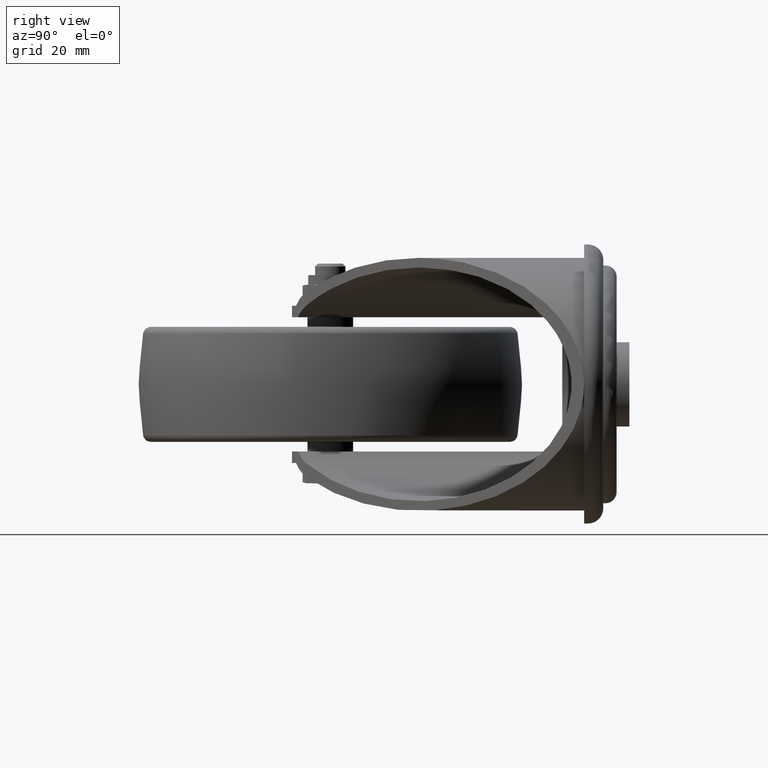
[diagram: clean part render]
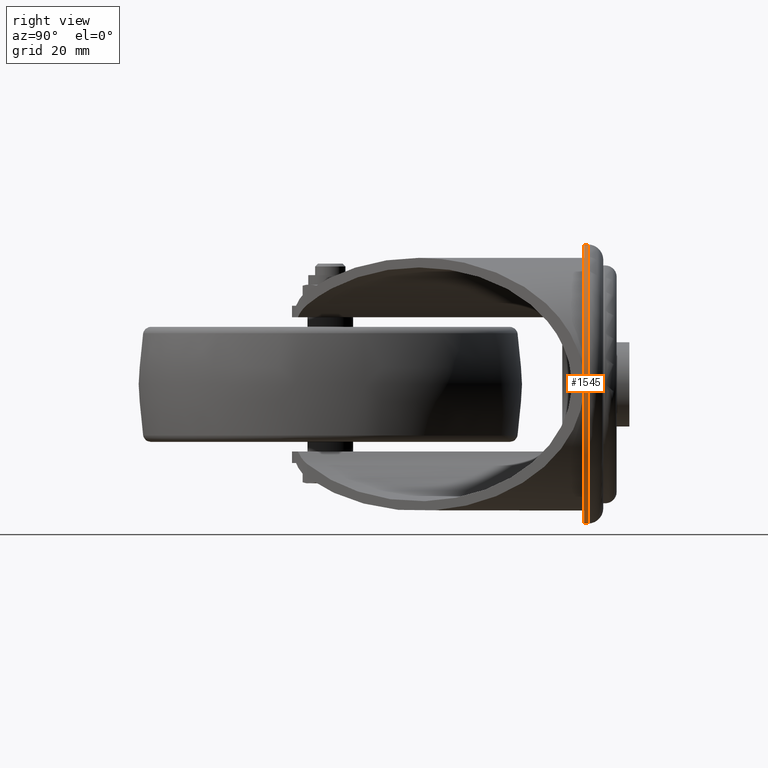
[diagram: same view with one face highlighted and labeled with its STEP entity id]
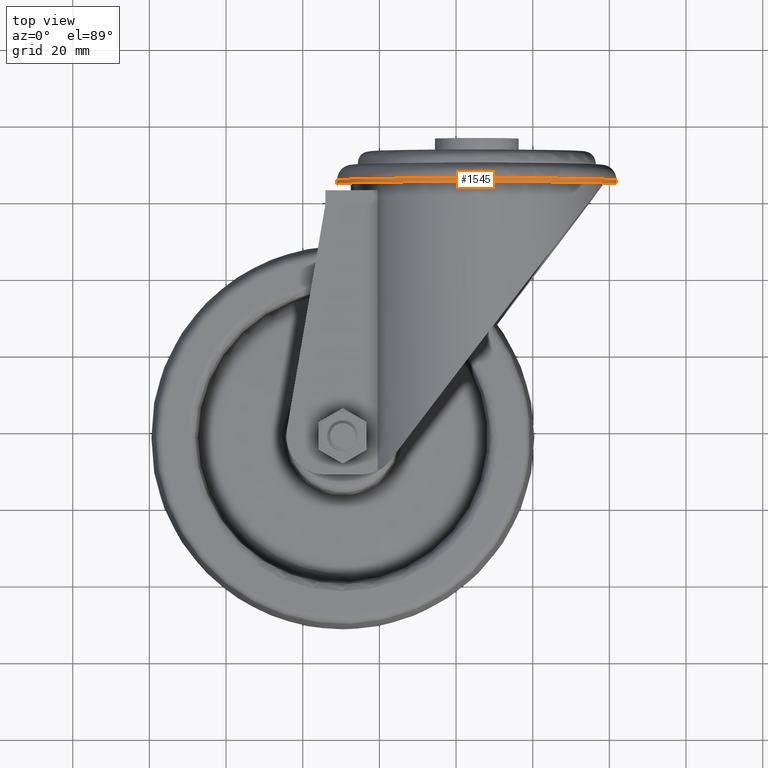
[diagram: same view with one face highlighted and labeled with its STEP entity id]
A machine part, right view. The second image highlights one B-rep face of the part: STEP entity #1545.
A second angle (top view) of the same face is appended — the face is thin or edge-on in the first view.
In plain terms, the highlighted cylindrical surface (bore or boss wall) has radius 36.5 mm, axis along (0, -1, 0).
Its self-contained STEP definition (entity closure, byte-faithful):
#234=FACE_OUTER_BOUND('',#343,.T.);
#343=EDGE_LOOP('',(#1136,#1137,#1138,#1139));
#468=CIRCLE('',#1788,36.5);
#470=CIRCLE('',#1791,36.5);
#587=LINE('',#2626,#651);
#651=VECTOR('',#2095,36.5);
#728=VERTEX_POINT('',#2620);
#729=VERTEX_POINT('',#2624);
#884=EDGE_CURVE('',#728,#728,#468,.T.);
#886=EDGE_CURVE('',#729,#729,#470,.T.);
#887=EDGE_CURVE('',#729,#728,#587,.T.);
#1136=ORIENTED_EDGE('',*,*,#886,.F.);
#1137=ORIENTED_EDGE('',*,*,#887,.T.);
#1138=ORIENTED_EDGE('',*,*,#884,.T.);
#1139=ORIENTED_EDGE('',*,*,#887,.F.);
#1515=CYLINDRICAL_SURFACE('',#1790,36.5);
#1545=ADVANCED_FACE('',(#234),#1515,.T.);
#1788=AXIS2_PLACEMENT_3D('',#2621,#2087,#2088);
#1790=AXIS2_PLACEMENT_3D('',#2623,#2091,#2092);
#1791=AXIS2_PLACEMENT_3D('',#2625,#2093,#2094);
#2087=DIRECTION('center_axis',(0.,-1.,0.));
#2088=DIRECTION('ref_axis',(0.,0.,-1.));
#2091=DIRECTION('center_axis',(0.,-1.,0.));
#2092=DIRECTION('ref_axis',(0.,0.,-1.));
#2093=DIRECTION('center_axis',(0.,-1.,0.));
#2094=DIRECTION('ref_axis',(0.,0.,-1.));
#2095=DIRECTION('',(0.,1.,0.));
#2620=CARTESIAN_POINT('',(35.,67.2,36.5));
#2621=CARTESIAN_POINT('Origin',(35.,67.2,0.));
#2623=CARTESIAN_POINT('Origin',(35.,66.2,0.));
#2624=CARTESIAN_POINT('',(35.,66.2,36.5));
#2625=CARTESIAN_POINT('Origin',(35.,66.2,0.));
#2626=CARTESIAN_POINT('',(35.,66.2,36.5));